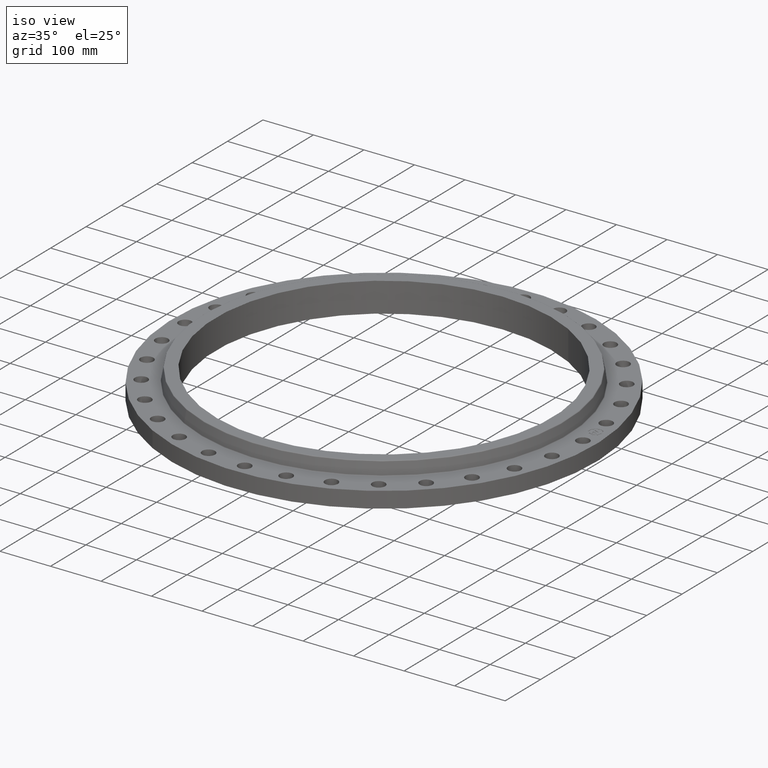
[diagram: clean part render]
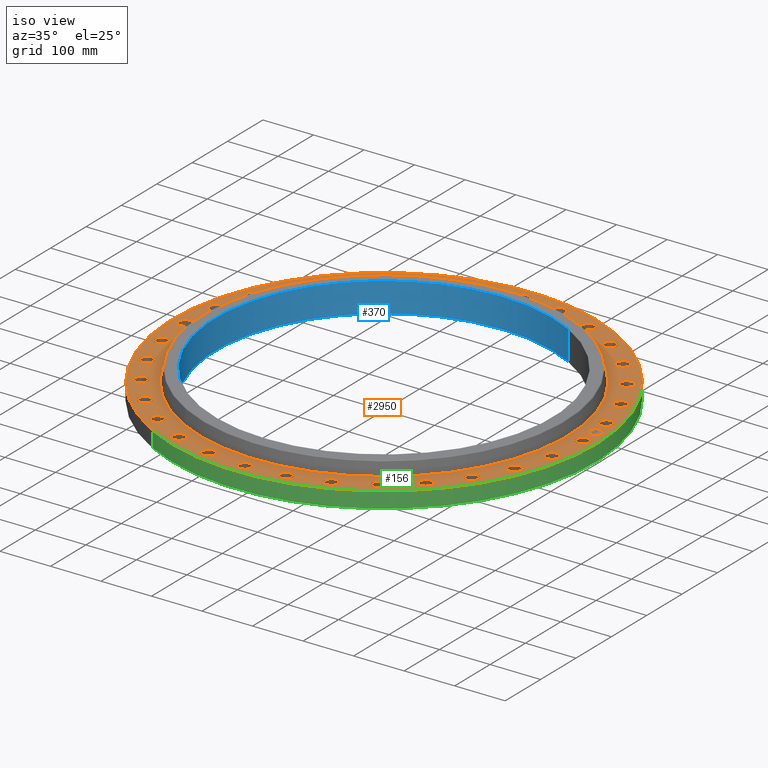
[diagram: same view with three faces highlighted in distinct colors, each labeled with its STEP entity id]
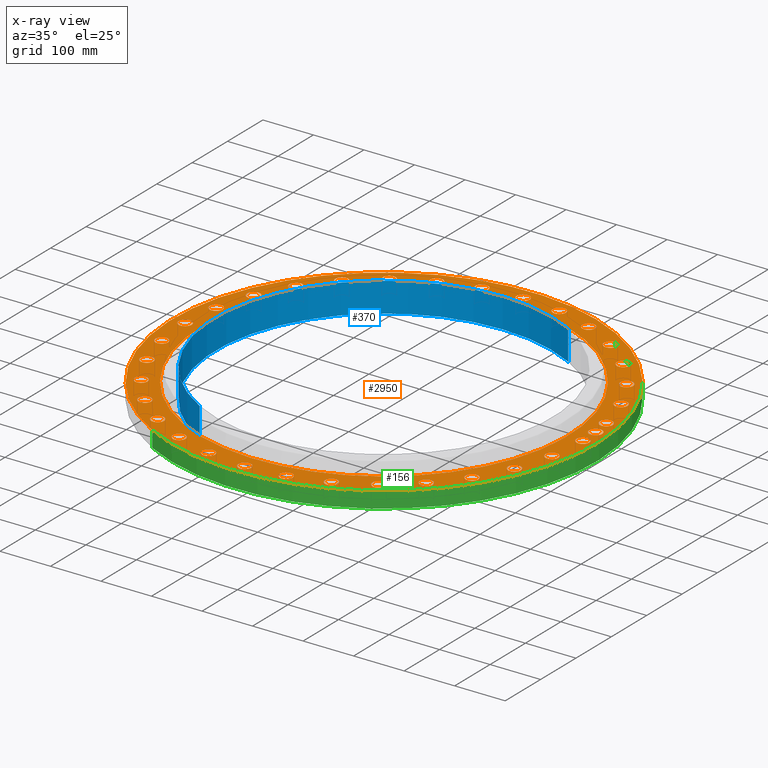
[diagram: x-ray of the same camera — body ghosted, the three highlighted faces saturated]
A machine part, iso view with three faces highlighted in distinct colors.
The next image is the same camera in x-ray (body ghosted, the three faces saturated) — at least one of them is partly hidden behind the body in this view.
Their STEP definitions:

[orange] entity #2950 — the highlighted planar face has unit normal (0, 0, -1).
#65=AXIS2_PLACEMENT_3D('Circle Axis2P3D',#63,#64,$) ;
#89=AXIS2_PLACEMENT_3D('Circle Axis2P3D',#87,#88,$) ;
#123=AXIS2_PLACEMENT_3D('Circle Axis2P3D',#121,#122,$) ;
#147=AXIS2_PLACEMENT_3D('Circle Axis2P3D',#145,#146,$) ;
#164=AXIS2_PLACEMENT_3D('Circle Axis2P3D',#162,#163,$) ;
#199=AXIS2_PLACEMENT_3D('Circle Axis2P3D',#197,#198,$) ;
#1448=AXIS2_PLACEMENT_3D('Circle Axis2P3D',#1446,#1447,$) ;
#1460=AXIS2_PLACEMENT_3D('Circle Axis2P3D',#1458,#1459,$) ;
#1492=AXIS2_PLACEMENT_3D('Circle Axis2P3D',#1490,#1491,$) ;
#1504=AXIS2_PLACEMENT_3D('Circle Axis2P3D',#1502,#1503,$) ;
#1536=AXIS2_PLACEMENT_3D('Circle Axis2P3D',#1534,#1535,$) ;
#1548=AXIS2_PLACEMENT_3D('Circle Axis2P3D',#1546,#1547,$) ;
#1580=AXIS2_PLACEMENT_3D('Circle Axis2P3D',#1578,#1579,$) ;
#1592=AXIS2_PLACEMENT_3D('Circle Axis2P3D',#1590,#1591,$) ;
#1624=AXIS2_PLACEMENT_3D('Circle Axis2P3D',#1622,#1623,$) ;
#1636=AXIS2_PLACEMENT_3D('Circle Axis2P3D',#1634,#1635,$) ;
#1668=AXIS2_PLACEMENT_3D('Circle Axis2P3D',#1666,#1667,$) ;
#1680=AXIS2_PLACEMENT_3D('Circle Axis2P3D',#1678,#1679,$) ;
#1712=AXIS2_PLACEMENT_3D('Circle Axis2P3D',#1710,#1711,$) ;
#1724=AXIS2_PLACEMENT_3D('Circle Axis2P3D',#1722,#1723,$) ;
#1756=AXIS2_PLACEMENT_3D('Circle Axis2P3D',#1754,#1755,$) ;
#1768=AXIS2_PLACEMENT_3D('Circle Axis2P3D',#1766,#1767,$) ;
#1800=AXIS2_PLACEMENT_3D('Circle Axis2P3D',#1798,#1799,$) ;
#1812=AXIS2_PLACEMENT_3D('Circle Axis2P3D',#1810,#1811,$) ;
#1844=AXIS2_PLACEMENT_3D('Circle Axis2P3D',#1842,#1843,$) ;
#1856=AXIS2_PLACEMENT_3D('Circle Axis2P3D',#1854,#1855,$) ;
#1888=AXIS2_PLACEMENT_3D('Circle Axis2P3D',#1886,#1887,$) ;
#1900=AXIS2_PLACEMENT_3D('Circle Axis2P3D',#1898,#1899,$) ;
#1932=AXIS2_PLACEMENT_3D('Circle Axis2P3D',#1930,#1931,$) ;
#1944=AXIS2_PLACEMENT_3D('Circle Axis2P3D',#1942,#1943,$) ;
#1976=AXIS2_PLACEMENT_3D('Circle Axis2P3D',#1974,#1975,$) ;
#1988=AXIS2_PLACEMENT_3D('Circle Axis2P3D',#1986,#1987,$) ;
#2020=AXIS2_PLACEMENT_3D('Circle Axis2P3D',#2018,#2019,$) ;
#2032=AXIS2_PLACEMENT_3D('Circle Axis2P3D',#2030,#2031,$) ;
#2064=AXIS2_PLACEMENT_3D('Circle Axis2P3D',#2062,#2063,$) ;
#2076=AXIS2_PLACEMENT_3D('Circle Axis2P3D',#2074,#2075,$) ;
#2108=AXIS2_PLACEMENT_3D('Circle Axis2P3D',#2106,#2107,$) ;
#2120=AXIS2_PLACEMENT_3D('Circle Axis2P3D',#2118,#2119,$) ;
#2152=AXIS2_PLACEMENT_3D('Circle Axis2P3D',#2150,#2151,$) ;
#2164=AXIS2_PLACEMENT_3D('Circle Axis2P3D',#2162,#2163,$) ;
#2196=AXIS2_PLACEMENT_3D('Circle Axis2P3D',#2194,#2195,$) ;
#2208=AXIS2_PLACEMENT_3D('Circle Axis2P3D',#2206,#2207,$) ;
#2240=AXIS2_PLACEMENT_3D('Circle Axis2P3D',#2238,#2239,$) ;
#2252=AXIS2_PLACEMENT_3D('Circle Axis2P3D',#2250,#2251,$) ;
#2284=AXIS2_PLACEMENT_3D('Circle Axis2P3D',#2282,#2283,$) ;
#2296=AXIS2_PLACEMENT_3D('Circle Axis2P3D',#2294,#2295,$) ;
#2328=AXIS2_PLACEMENT_3D('Circle Axis2P3D',#2326,#2327,$) ;
#2340=AXIS2_PLACEMENT_3D('Circle Axis2P3D',#2338,#2339,$) ;
#2372=AXIS2_PLACEMENT_3D('Circle Axis2P3D',#2370,#2371,$) ;
#2384=AXIS2_PLACEMENT_3D('Circle Axis2P3D',#2382,#2383,$) ;
#2416=AXIS2_PLACEMENT_3D('Circle Axis2P3D',#2414,#2415,$) ;
#2428=AXIS2_PLACEMENT_3D('Circle Axis2P3D',#2426,#2427,$) ;
#2460=AXIS2_PLACEMENT_3D('Circle Axis2P3D',#2458,#2459,$) ;
#2472=AXIS2_PLACEMENT_3D('Circle Axis2P3D',#2470,#2471,$) ;
#2504=AXIS2_PLACEMENT_3D('Circle Axis2P3D',#2502,#2503,$) ;
#2516=AXIS2_PLACEMENT_3D('Circle Axis2P3D',#2514,#2515,$) ;
#2548=AXIS2_PLACEMENT_3D('Circle Axis2P3D',#2546,#2547,$) ;
#2560=AXIS2_PLACEMENT_3D('Circle Axis2P3D',#2558,#2559,$) ;
#2592=AXIS2_PLACEMENT_3D('Circle Axis2P3D',#2590,#2591,$) ;
#2604=AXIS2_PLACEMENT_3D('Circle Axis2P3D',#2602,#2603,$) ;
#2636=AXIS2_PLACEMENT_3D('Circle Axis2P3D',#2634,#2635,$) ;
#2648=AXIS2_PLACEMENT_3D('Circle Axis2P3D',#2646,#2647,$) ;
#2680=AXIS2_PLACEMENT_3D('Circle Axis2P3D',#2678,#2679,$) ;
#2692=AXIS2_PLACEMENT_3D('Circle Axis2P3D',#2690,#2691,$) ;
#2724=AXIS2_PLACEMENT_3D('Circle Axis2P3D',#2722,#2723,$) ;
#2736=AXIS2_PLACEMENT_3D('Circle Axis2P3D',#2734,#2735,$) ;
#2768=AXIS2_PLACEMENT_3D('Circle Axis2P3D',#2766,#2767,$) ;
#2780=AXIS2_PLACEMENT_3D('Circle Axis2P3D',#2778,#2779,$) ;
#2794=AXIS2_PLACEMENT_3D('Plane Axis2P3D',#2791,#2792,#2793) ;
#2934=AXIS2_PLACEMENT_3D('Circle Axis2P3D',#2932,#2933,$) ;
#2943=AXIS2_PLACEMENT_3D('Circle Axis2P3D',#2941,#2942,$) ;
#46=CARTESIAN_POINT('Vertex',(15.0612087191,0.239712769303,1.25000000001)) ;
#60=CARTESIAN_POINT('Vertex',(15.938791281,-0.239712769303,1.25000000001)) ;
#63=CARTESIAN_POINT('Axis2P3D Location',(15.5000000001,0.,1.25000000001)) ;
#87=CARTESIAN_POINT('Axis2P3D Location',(15.5000000001,0.,1.25000000001)) ;
#118=CARTESIAN_POINT('Vertex',(-7.910521387,-14.4801122712,1.25000000001)) ;
#121=CARTESIAN_POINT('Axis2P3D Location',(0.,0.,1.25000000001)) ;
#125=CARTESIAN_POINT('Vertex',(7.910521387,14.4801122712,1.25000000001)) ;
#145=CARTESIAN_POINT('Axis2P3D Location',(0.,0.,1.25000000001)) ;
#162=CARTESIAN_POINT('Axis2P3D Location',(0.,0.,1.25000000001)) ;
#166=CARTESIAN_POINT('Vertex',(6.85595107269,12.5497342592,1.25000000001)) ;
#168=CARTESIAN_POINT('Vertex',(-6.85595107269,-12.5497342592,1.25000000001)) ;
#197=CARTESIAN_POINT('Axis2P3D Location',(0.,0.,1.25000000001)) ;
#1436=CARTESIAN_POINT('Vertex',(-15.0612087191,-0.239712769303,1.25000000001)) ;
#1443=CARTESIAN_POINT('Vertex',(-15.938791281,0.239712769303,1.25000000001)) ;
#1446=CARTESIAN_POINT('Axis2P3D Location',(-15.5000000001,-1.89820253869E-015,1.25000000001)) ;
#1458=CARTESIAN_POINT('Axis2P3D Location',(-15.5000000001,-1.89820253869E-015,1.25000000001)) ;
#1480=CARTESIAN_POINT('Vertex',(14.7250461754,3.17340281462,1.25000000001)) ;
#1487=CARTESIAN_POINT('Vertex',(15.6792975172,2.8743971679,1.25000000001)) ;
#1490=CARTESIAN_POINT('Axis2P3D Location',(15.2021718463,3.02389999126,1.25000000001)) ;
#1502=CARTESIAN_POINT('Axis2P3D Location',(15.2021718463,3.02389999126,1.25000000001)) ;
#1524=CARTESIAN_POINT('Vertex',(-14.7250461754,-3.17340281462,1.25000000001)) ;
#1531=CARTESIAN_POINT('Vertex',(-15.6792975172,-2.8743971679,1.25000000001)) ;
#1534=CARTESIAN_POINT('Axis2P3D Location',(-15.2021718463,-3.02389999126,1.25000000001)) ;
#1546=CARTESIAN_POINT('Axis2P3D Location',(-15.2021718463,-3.02389999126,1.25000000001)) ;
#1568=CARTESIAN_POINT('Vertex',(14.8185774581,-2.70318930331,1.25000000001)) ;
#1575=CARTESIAN_POINT('Vertex',(15.5857662345,-3.34461067922,1.25000000001)) ;
#1578=CARTESIAN_POINT('Axis2P3D Location',(15.2021718463,-3.02389999126,1.25000000001)) ;
#1590=CARTESIAN_POINT('Axis2P3D Location',(15.2021718463,-3.02389999126,1.25000000001)) ;
#1612=CARTESIAN_POINT('Vertex',(-0.239712769303,15.0612087191,1.25000000001)) ;
#1619=CARTESIAN_POINT('Vertex',(0.239712769303,15.938791281,1.25000000001)) ;
#1622=CARTESIAN_POINT('Axis2P3D Location',(-6.09373931619E-016,15.5000000001,1.25000000001)) ;
#1634=CARTESIAN_POINT('Axis2P3D Location',(-6.09373931619E-016,15.5000000001,1.25000000001)) ;
#1656=CARTESIAN_POINT('Vertex',(12.3897600954,8.56687312099,1.25000000001)) ;
#1663=CARTESIAN_POINT('Vertex',(13.3857978861,8.65580410268,1.25000000001)) ;
#1666=CARTESIAN_POINT('Axis2P3D Location',(12.8877789907,8.61133861184,1.25000000001)) ;
#1678=CARTESIAN_POINT('Axis2P3D Location',(12.8877789907,8.61133861184,1.25000000001)) ;
#1700=CARTESIAN_POINT('Vertex',(-10.8193853429,10.4803802934,1.25000000001)) ;
#1707=CARTESIAN_POINT('Vertex',(-11.100924874,11.4399299234,1.25000000001)) ;
#1710=CARTESIAN_POINT('Axis2P3D Location',(-10.9601551084,10.9601551084,1.25000000001)) ;
#1722=CARTESIAN_POINT('Axis2P3D Location',(-10.9601551084,10.9601551084,1.25000000001)) ;
#1744=CARTESIAN_POINT('Vertex',(12.6561146536,-8.16824535428,1.25000000001)) ;
#1751=CARTESIAN_POINT('Vertex',(13.1194433279,-9.0544318694,1.25000000001)) ;
#1754=CARTESIAN_POINT('Axis2P3D Location',(12.8877789907,-8.61133861184,1.25000000001)) ;
#1766=CARTESIAN_POINT('Axis2P3D Location',(12.8877789907,-8.61133861184,1.25000000001)) ;
#1788=CARTESIAN_POINT('Vertex',(10.4803802934,10.8193853429,1.25000000001)) ;
#1795=CARTESIAN_POINT('Vertex',(11.4399299234,11.100924874,1.25000000001)) ;
#1798=CARTESIAN_POINT('Axis2P3D Location',(10.9601551084,10.9601551084,1.25000000001)) ;
#1810=CARTESIAN_POINT('Axis2P3D Location',(10.9601551084,10.9601551084,1.25000000001)) ;
#1832=CARTESIAN_POINT('Vertex',(10.8193853429,-10.4803802934,1.25000000001)) ;
#1839=CARTESIAN_POINT('Vertex',(11.100924874,-11.4399299234,1.25000000001)) ;
#1842=CARTESIAN_POINT('Axis2P3D Location',(10.9601551084,-10.9601551084,1.25000000001)) ;
#1854=CARTESIAN_POINT('Axis2P3D Location',(10.9601551084,-10.9601551084,1.25000000001)) ;
#1876=CARTESIAN_POINT('Vertex',(-14.0064765758,5.54220932696,1.25000000001)) ;
#1883=CARTESIAN_POINT('Vertex',(-14.6337889322,6.32097707641,1.25000000001)) ;
#1886=CARTESIAN_POINT('Axis2P3D Location',(-14.320132754,5.93159320168,1.25000000001)) ;
#1898=CARTESIAN_POINT('Axis2P3D Location',(-14.320132754,5.93159320168,1.25000000001)) ;
#1920=CARTESIAN_POINT('Vertex',(8.56687312099,-12.3897600954,1.25000000001)) ;
#1927=CARTESIAN_POINT('Vertex',(8.65580410268,-13.3857978861,1.25000000001)) ;
#1930=CARTESIAN_POINT('Axis2P3D Location',(8.61133861184,-12.8877789907,1.25000000001)) ;
#1942=CARTESIAN_POINT('Axis2P3D Location',(8.61133861184,-12.8877789907,1.25000000001)) ;
#1964=CARTESIAN_POINT('Vertex',(-5.98514076944,13.8230083651,1.25000000001)) ;
#1971=CARTESIAN_POINT('Vertex',(-5.87804563393,14.8172571428,1.25000000001)) ;
#1974=CARTESIAN_POINT('Axis2P3D Location',(-5.93159320168,14.320132754,1.25000000001)) ;
#1986=CARTESIAN_POINT('Axis2P3D Location',(-5.93159320168,14.320132754,1.25000000001)) ;
#2008=CARTESIAN_POINT('Vertex',(5.98514076944,-13.8230083651,1.25000000001)) ;
#2015=CARTESIAN_POINT('Vertex',(5.87804563393,-14.8172571428,1.25000000001)) ;
#2018=CARTESIAN_POINT('Axis2P3D Location',(5.93159320168,-14.320132754,1.25000000001)) ;
#2030=CARTESIAN_POINT('Axis2P3D Location',(5.93159320168,-14.320132754,1.25000000001)) ;
#2052=CARTESIAN_POINT('Vertex',(5.54220932696,14.0064765758,1.25000000001)) ;
#2059=CARTESIAN_POINT('Vertex',(6.32097707641,14.6337889322,1.25000000001)) ;
#2062=CARTESIAN_POINT('Axis2P3D Location',(5.93159320168,14.320132754,1.25000000001)) ;
#2074=CARTESIAN_POINT('Axis2P3D Location',(5.93159320168,14.320132754,1.25000000001)) ;
#2096=CARTESIAN_POINT('Vertex',(3.17340281462,-14.7250461754,1.25000000001)) ;
#2103=CARTESIAN_POINT('Vertex',(2.8743971679,-15.6792975172,1.25000000001)) ;
#2106=CARTESIAN_POINT('Axis2P3D Location',(3.02389999126,-15.2021718463,1.25000000001)) ;
#2118=CARTESIAN_POINT('Axis2P3D Location',(3.02389999126,-15.2021718463,1.25000000001)) ;
#2140=CARTESIAN_POINT('Vertex',(13.8230083651,5.98514076944,1.25000000001)) ;
#2147=CARTESIAN_POINT('Vertex',(14.8172571428,5.87804563393,1.25000000001)) ;
#2150=CARTESIAN_POINT('Axis2P3D Location',(14.320132754,5.93159320168,1.25000000001)) ;
#2162=CARTESIAN_POINT('Axis2P3D Location',(14.320132754,5.93159320168,1.25000000001)) ;
#2184=CARTESIAN_POINT('Vertex',(0.239712769303,-15.0612087191,1.25000000001)) ;
#2191=CARTESIAN_POINT('Vertex',(-0.239712769303,-15.938791281,1.25000000001)) ;
#2194=CARTESIAN_POINT('Axis2P3D Location',(9.49101269343E-016,-15.5000000001,1.25000000001)) ;
#2206=CARTESIAN_POINT('Axis2P3D Location',(9.49101269343E-016,-15.5000000001,1.25000000001)) ;
#2228=CARTESIAN_POINT('Vertex',(-14.8185774581,2.70318930331,1.25000000001)) ;
#2235=CARTESIAN_POINT('Vertex',(-15.5857662345,3.34461067922,1.25000000001)) ;
#2238=CARTESIAN_POINT('Axis2P3D Location',(-15.2021718463,3.02389999126,1.25000000001)) ;
#2250=CARTESIAN_POINT('Axis2P3D Location',(-15.2021718463,3.02389999126,1.25000000001)) ;
#2272=CARTESIAN_POINT('Vertex',(-2.70318930331,-14.8185774581,1.25000000001)) ;
#2279=CARTESIAN_POINT('Vertex',(-3.34461067922,-15.5857662345,1.25000000001)) ;
#2282=CARTESIAN_POINT('Axis2P3D Location',(-3.02389999126,-15.2021718463,1.25000000001)) ;
#2294=CARTESIAN_POINT('Axis2P3D Location',(-3.02389999126,-15.2021718463,1.25000000001)) ;
#2316=CARTESIAN_POINT('Vertex',(-12.6561146536,8.16824535428,1.25000000001)) ;
#2323=CARTESIAN_POINT('Vertex',(-13.1194433279,9.0544318694,1.25000000001)) ;
#2326=CARTESIAN_POINT('Axis2P3D Location',(-12.8877789907,8.61133861184,1.25000000001)) ;
#2338=CARTESIAN_POINT('Axis2P3D Location',(-12.8877789907,8.61133861184,1.25000000001)) ;
#2360=CARTESIAN_POINT('Vertex',(-5.54220932696,-14.0064765758,1.25000000001)) ;
#2367=CARTESIAN_POINT('Vertex',(-6.32097707641,-14.6337889322,1.25000000001)) ;
#2370=CARTESIAN_POINT('Axis2P3D Location',(-5.93159320168,-14.320132754,1.25000000001)) ;
#2382=CARTESIAN_POINT('Axis2P3D Location',(-5.93159320168,-14.320132754,1.25000000001)) ;
#2404=CARTESIAN_POINT('Vertex',(-8.56687312099,12.3897600954,1.25000000001)) ;
#2411=CARTESIAN_POINT('Vertex',(-8.65580410268,13.3857978861,1.25000000001)) ;
#2414=CARTESIAN_POINT('Axis2P3D Location',(-8.61133861184,12.8877789907,1.25000000001)) ;
#2426=CARTESIAN_POINT('Axis2P3D Location',(-8.61133861184,12.8877789907,1.25000000001)) ;
#2448=CARTESIAN_POINT('Vertex',(-8.16824535428,-12.6561146536,1.25000000001)) ;
#2455=CARTESIAN_POINT('Vertex',(-9.0544318694,-13.1194433279,1.25000000001)) ;
#2458=CARTESIAN_POINT('Axis2P3D Location',(-8.61133861184,-12.8877789907,1.25000000001)) ;
#2470=CARTESIAN_POINT('Axis2P3D Location',(-8.61133861184,-12.8877789907,1.25000000001)) ;
#2492=CARTESIAN_POINT('Vertex',(-3.17340281462,14.7250461754,1.25000000001)) ;
#2499=CARTESIAN_POINT('Vertex',(-2.8743971679,15.6792975172,1.25000000001)) ;
#2502=CARTESIAN_POINT('Axis2P3D Location',(-3.02389999126,15.2021718463,1.25000000001)) ;
#2514=CARTESIAN_POINT('Axis2P3D Location',(-3.02389999126,15.2021718463,1.25000000001)) ;
#2536=CARTESIAN_POINT('Vertex',(-10.4803802934,-10.8193853429,1.25000000001)) ;
#2543=CARTESIAN_POINT('Vertex',(-11.4399299234,-11.100924874,1.25000000001)) ;
#2546=CARTESIAN_POINT('Axis2P3D Location',(-10.9601551084,-10.9601551084,1.25000000001)) ;
#2558=CARTESIAN_POINT('Axis2P3D Location',(-10.9601551084,-10.9601551084,1.25000000001)) ;
#2580=CARTESIAN_POINT('Vertex',(2.70318930331,14.8185774581,1.25000000001)) ;
#2587=CARTESIAN_POINT('Vertex',(3.34461067922,15.5857662345,1.25000000001)) ;
#2590=CARTESIAN_POINT('Axis2P3D Location',(3.02389999126,15.2021718463,1.25000000001)) ;
#2602=CARTESIAN_POINT('Axis2P3D Location',(3.02389999126,15.2021718463,1.25000000001)) ;
#2624=CARTESIAN_POINT('Vertex',(-12.3897600954,-8.56687312099,1.25000000001)) ;
#2631=CARTESIAN_POINT('Vertex',(-13.3857978861,-8.65580410268,1.25000000001)) ;
#2634=CARTESIAN_POINT('Axis2P3D Location',(-12.8877789907,-8.61133861184,1.25000000001)) ;
#2646=CARTESIAN_POINT('Axis2P3D Location',(-12.8877789907,-8.61133861184,1.25000000001)) ;
#2668=CARTESIAN_POINT('Vertex',(8.16824535428,12.6561146536,1.25000000001)) ;
#2675=CARTESIAN_POINT('Vertex',(9.0544318694,13.1194433279,1.25000000001)) ;
#2678=CARTESIAN_POINT('Axis2P3D Location',(8.61133861184,12.8877789907,1.25000000001)) ;
#2690=CARTESIAN_POINT('Axis2P3D Location',(8.61133861184,12.8877789907,1.25000000001)) ;
#2712=CARTESIAN_POINT('Vertex',(-13.8230083651,-5.98514076944,1.25000000001)) ;
#2719=CARTESIAN_POINT('Vertex',(-14.8172571428,-5.87804563393,1.25000000001)) ;
#2722=CARTESIAN_POINT('Axis2P3D Location',(-14.320132754,-5.93159320168,1.25000000001)) ;
#2734=CARTESIAN_POINT('Axis2P3D Location',(-14.320132754,-5.93159320168,1.25000000001)) ;
#2756=CARTESIAN_POINT('Vertex',(14.0064765758,-5.54220932696,1.25000000001)) ;
#2763=CARTESIAN_POINT('Vertex',(14.6337889322,-6.32097707641,1.25000000001)) ;
#2766=CARTESIAN_POINT('Axis2P3D Location',(14.320132754,-5.93159320168,1.25000000001)) ;
#2778=CARTESIAN_POINT('Axis2P3D Location',(14.320132754,-5.93159320168,1.25000000001)) ;
#2791=CARTESIAN_POINT('Axis2P3D Location',(0.,16.5000000001,1.25000000001)) ;
#2932=CARTESIAN_POINT('Axis2P3D Location',(15.4253632635,1.51926567511,1.25000000001)) ;
#2936=CARTESIAN_POINT('Vertex',(15.3763546938,2.01685803348,1.25000000001)) ;
#2938=CARTESIAN_POINT('Vertex',(15.4743718332,1.02167331675,1.25000000001)) ;
#2941=CARTESIAN_POINT('Axis2P3D Location',(15.4253632635,1.51926567511,1.25000000001)) ;
#64=DIRECTION('Axis2P3D Direction',(0.,-0.,-0.0393700787402)) ;
#88=DIRECTION('Axis2P3D Direction',(0.,-0.,-0.0393700787402)) ;
#122=DIRECTION('Axis2P3D Direction',(0.,0.,-0.0393700787402)) ;
#146=DIRECTION('Axis2P3D Direction',(0.,0.,-0.0393700787402)) ;
#163=DIRECTION('Axis2P3D Direction',(0.,0.,-0.0393700787402)) ;
#198=DIRECTION('Axis2P3D Direction',(0.,0.,-0.0393700787402)) ;
#1447=DIRECTION('Axis2P3D Direction',(-0.,0.,-0.0393700787402)) ;
#1459=DIRECTION('Axis2P3D Direction',(-0.,0.,-0.0393700787402)) ;
#1491=DIRECTION('Axis2P3D Direction',(0.,0.,-0.0393700787402)) ;
#1503=DIRECTION('Axis2P3D Direction',(0.,0.,-0.0393700787402)) ;
#1535=DIRECTION('Axis2P3D Direction',(-0.,0.,-0.0393700787402)) ;
#1547=DIRECTION('Axis2P3D Direction',(-0.,0.,-0.0393700787402)) ;
#1579=DIRECTION('Axis2P3D Direction',(0.,-0.,-0.0393700787402)) ;
#1591=DIRECTION('Axis2P3D Direction',(0.,-0.,-0.0393700787402)) ;
#1623=DIRECTION('Axis2P3D Direction',(0.,0.,-0.0393700787402)) ;
#1635=DIRECTION('Axis2P3D Direction',(0.,0.,-0.0393700787402)) ;
#1667=DIRECTION('Axis2P3D Direction',(0.,0.,-0.0393700787402)) ;
#1679=DIRECTION('Axis2P3D Direction',(0.,0.,-0.0393700787402)) ;
#1711=DIRECTION('Axis2P3D Direction',(0.,0.,-0.0393700787402)) ;
#1723=DIRECTION('Axis2P3D Direction',(0.,0.,-0.0393700787402)) ;
#1755=DIRECTION('Axis2P3D Direction',(0.,-0.,-0.0393700787402)) ;
#1767=DIRECTION('Axis2P3D Direction',(0.,-0.,-0.0393700787402)) ;
#1799=DIRECTION('Axis2P3D Direction',(0.,0.,-0.0393700787402)) ;
#1811=DIRECTION('Axis2P3D Direction',(0.,0.,-0.0393700787402)) ;
#1843=DIRECTION('Axis2P3D Direction',(0.,-0.,-0.0393700787402)) ;
#1855=DIRECTION('Axis2P3D Direction',(0.,-0.,-0.0393700787402)) ;
#1887=DIRECTION('Axis2P3D Direction',(0.,0.,-0.0393700787402)) ;
#1899=DIRECTION('Axis2P3D Direction',(0.,0.,-0.0393700787402)) ;
#1931=DIRECTION('Axis2P3D Direction',(0.,-0.,-0.0393700787402)) ;
#1943=DIRECTION('Axis2P3D Direction',(0.,-0.,-0.0393700787402)) ;
#1975=DIRECTION('Axis2P3D Direction',(0.,0.,-0.0393700787402)) ;
#1987=DIRECTION('Axis2P3D Direction',(0.,0.,-0.0393700787402)) ;
#2019=DIRECTION('Axis2P3D Direction',(0.,-0.,-0.0393700787402)) ;
#2031=DIRECTION('Axis2P3D Direction',(0.,-0.,-0.0393700787402)) ;
#2063=DIRECTION('Axis2P3D Direction',(0.,0.,-0.0393700787402)) ;
#2075=DIRECTION('Axis2P3D Direction',(0.,0.,-0.0393700787402)) ;
#2107=DIRECTION('Axis2P3D Direction',(0.,-0.,-0.0393700787402)) ;
#2119=DIRECTION('Axis2P3D Direction',(0.,-0.,-0.0393700787402)) ;
#2151=DIRECTION('Axis2P3D Direction',(0.,0.,-0.0393700787402)) ;
#2163=DIRECTION('Axis2P3D Direction',(0.,0.,-0.0393700787402)) ;
#2195=DIRECTION('Axis2P3D Direction',(0.,-0.,-0.0393700787402)) ;
#2207=DIRECTION('Axis2P3D Direction',(0.,-0.,-0.0393700787402)) ;
#2239=DIRECTION('Axis2P3D Direction',(0.,0.,-0.0393700787402)) ;
#2251=DIRECTION('Axis2P3D Direction',(0.,0.,-0.0393700787402)) ;
#2283=DIRECTION('Axis2P3D Direction',(-0.,0.,-0.0393700787402)) ;
#2295=DIRECTION('Axis2P3D Direction',(-0.,0.,-0.0393700787402)) ;
#2327=DIRECTION('Axis2P3D Direction',(0.,0.,-0.0393700787402)) ;
#2339=DIRECTION('Axis2P3D Direction',(0.,0.,-0.0393700787402)) ;
#2371=DIRECTION('Axis2P3D Direction',(-0.,0.,-0.0393700787402)) ;
#2383=DIRECTION('Axis2P3D Direction',(-0.,0.,-0.0393700787402)) ;
#2415=DIRECTION('Axis2P3D Direction',(0.,0.,-0.0393700787402)) ;
#2427=DIRECTION('Axis2P3D Direction',(0.,0.,-0.0393700787402)) ;
#2459=DIRECTION('Axis2P3D Direction',(-0.,0.,-0.0393700787402)) ;
#2471=DIRECTION('Axis2P3D Direction',(-0.,0.,-0.0393700787402)) ;
#2503=DIRECTION('Axis2P3D Direction',(0.,0.,-0.0393700787402)) ;
#2515=DIRECTION('Axis2P3D Direction',(0.,0.,-0.0393700787402)) ;
#2547=DIRECTION('Axis2P3D Direction',(-0.,0.,-0.0393700787402)) ;
#2559=DIRECTION('Axis2P3D Direction',(-0.,0.,-0.0393700787402)) ;
#2591=DIRECTION('Axis2P3D Direction',(0.,0.,-0.0393700787402)) ;
#2603=DIRECTION('Axis2P3D Direction',(0.,0.,-0.0393700787402)) ;
#2635=DIRECTION('Axis2P3D Direction',(-0.,0.,-0.0393700787402)) ;
#2647=DIRECTION('Axis2P3D Direction',(-0.,0.,-0.0393700787402)) ;
#2679=DIRECTION('Axis2P3D Direction',(0.,0.,-0.0393700787402)) ;
#2691=DIRECTION('Axis2P3D Direction',(0.,0.,-0.0393700787402)) ;
#2723=DIRECTION('Axis2P3D Direction',(-0.,0.,-0.0393700787402)) ;
#2735=DIRECTION('Axis2P3D Direction',(-0.,0.,-0.0393700787402)) ;
#2767=DIRECTION('Axis2P3D Direction',(0.,-0.,-0.0393700787402)) ;
#2779=DIRECTION('Axis2P3D Direction',(0.,-0.,-0.0393700787402)) ;
#2792=DIRECTION('Axis2P3D Direction',(0.,0.,-0.0393700787402)) ;
#2793=DIRECTION('Axis2P3D XDirection',(0.0393700787402,0.,0.)) ;
#2933=DIRECTION('Axis2P3D Direction',(0.,0.,-0.0393700787402)) ;
#2942=DIRECTION('Axis2P3D Direction',(0.,0.,-0.0393700787402)) ;
#2797=ORIENTED_EDGE('',*,*,#149,.F.) ;
#2798=ORIENTED_EDGE('',*,*,#127,.F.) ;
#2801=ORIENTED_EDGE('',*,*,#67,.T.) ;
#2802=ORIENTED_EDGE('',*,*,#91,.T.) ;
#2805=ORIENTED_EDGE('',*,*,#201,.T.) ;
#2806=ORIENTED_EDGE('',*,*,#170,.T.) ;
#2809=ORIENTED_EDGE('',*,*,#1594,.T.) ;
#2810=ORIENTED_EDGE('',*,*,#1582,.T.) ;
#2813=ORIENTED_EDGE('',*,*,#2782,.T.) ;
#2814=ORIENTED_EDGE('',*,*,#2770,.T.) ;
#2817=ORIENTED_EDGE('',*,*,#1770,.T.) ;
#2818=ORIENTED_EDGE('',*,*,#1758,.T.) ;
#2821=ORIENTED_EDGE('',*,*,#1858,.T.) ;
#2822=ORIENTED_EDGE('',*,*,#1846,.T.) ;
#2825=ORIENTED_EDGE('',*,*,#1946,.T.) ;
#2826=ORIENTED_EDGE('',*,*,#1934,.T.) ;
#2829=ORIENTED_EDGE('',*,*,#2034,.T.) ;
#2830=ORIENTED_EDGE('',*,*,#2022,.T.) ;
#2833=ORIENTED_EDGE('',*,*,#2122,.T.) ;
#2834=ORIENTED_EDGE('',*,*,#2110,.T.) ;
#2837=ORIENTED_EDGE('',*,*,#2210,.T.) ;
#2838=ORIENTED_EDGE('',*,*,#2198,.T.) ;
#2841=ORIENTED_EDGE('',*,*,#2298,.T.) ;
#2842=ORIENTED_EDGE('',*,*,#2286,.T.) ;
#2845=ORIENTED_EDGE('',*,*,#2386,.T.) ;
#2846=ORIENTED_EDGE('',*,*,#2374,.T.) ;
#2849=ORIENTED_EDGE('',*,*,#2474,.T.) ;
#2850=ORIENTED_EDGE('',*,*,#2462,.T.) ;
#2853=ORIENTED_EDGE('',*,*,#2562,.T.) ;
#2854=ORIENTED_EDGE('',*,*,#2550,.T.) ;
#2857=ORIENTED_EDGE('',*,*,#2650,.T.) ;
#2858=ORIENTED_EDGE('',*,*,#2638,.T.) ;
#2861=ORIENTED_EDGE('',*,*,#2738,.T.) ;
#2862=ORIENTED_EDGE('',*,*,#2726,.T.) ;
#2865=ORIENTED_EDGE('',*,*,#1550,.T.) ;
#2866=ORIENTED_EDGE('',*,*,#1538,.T.) ;
#2869=ORIENTED_EDGE('',*,*,#1462,.T.) ;
#2870=ORIENTED_EDGE('',*,*,#1450,.T.) ;
#2873=ORIENTED_EDGE('',*,*,#2254,.T.) ;
#2874=ORIENTED_EDGE('',*,*,#2242,.T.) ;
#2877=ORIENTED_EDGE('',*,*,#1902,.T.) ;
#2878=ORIENTED_EDGE('',*,*,#1890,.T.) ;
#2881=ORIENTED_EDGE('',*,*,#2342,.T.) ;
#2882=ORIENTED_EDGE('',*,*,#2330,.T.) ;
#2885=ORIENTED_EDGE('',*,*,#1726,.T.) ;
#2886=ORIENTED_EDGE('',*,*,#1714,.T.) ;
#2889=ORIENTED_EDGE('',*,*,#2430,.T.) ;
#2890=ORIENTED_EDGE('',*,*,#2418,.T.) ;
#2893=ORIENTED_EDGE('',*,*,#1990,.T.) ;
#2894=ORIENTED_EDGE('',*,*,#1978,.T.) ;
#2897=ORIENTED_EDGE('',*,*,#2518,.T.) ;
#2898=ORIENTED_EDGE('',*,*,#2506,.T.) ;
#2901=ORIENTED_EDGE('',*,*,#1638,.T.) ;
#2902=ORIENTED_EDGE('',*,*,#1626,.T.) ;
#2905=ORIENTED_EDGE('',*,*,#2606,.T.) ;
#2906=ORIENTED_EDGE('',*,*,#2594,.T.) ;
#2909=ORIENTED_EDGE('',*,*,#2078,.T.) ;
#2910=ORIENTED_EDGE('',*,*,#2066,.T.) ;
#2913=ORIENTED_EDGE('',*,*,#2694,.T.) ;
#2914=ORIENTED_EDGE('',*,*,#2682,.T.) ;
#2917=ORIENTED_EDGE('',*,*,#1814,.T.) ;
#2918=ORIENTED_EDGE('',*,*,#1802,.T.) ;
#2921=ORIENTED_EDGE('',*,*,#1682,.T.) ;
#2922=ORIENTED_EDGE('',*,*,#1670,.T.) ;
#2925=ORIENTED_EDGE('',*,*,#2166,.T.) ;
#2926=ORIENTED_EDGE('',*,*,#2154,.T.) ;
#2929=ORIENTED_EDGE('',*,*,#1506,.T.) ;
#2930=ORIENTED_EDGE('',*,*,#1494,.T.) ;
#2947=ORIENTED_EDGE('',*,*,#2940,.T.) ;
#2948=ORIENTED_EDGE('',*,*,#2945,.T.) ;
#2803=FACE_BOUND('',#2800,.T.) ;
#2807=FACE_BOUND('',#2804,.T.) ;
#2811=FACE_BOUND('',#2808,.T.) ;
#2815=FACE_BOUND('',#2812,.T.) ;
#2819=FACE_BOUND('',#2816,.T.) ;
#2823=FACE_BOUND('',#2820,.T.) ;
#2827=FACE_BOUND('',#2824,.T.) ;
#2831=FACE_BOUND('',#2828,.T.) ;
#2835=FACE_BOUND('',#2832,.T.) ;
#2839=FACE_BOUND('',#2836,.T.) ;
#2843=FACE_BOUND('',#2840,.T.) ;
#2847=FACE_BOUND('',#2844,.T.) ;
#2851=FACE_BOUND('',#2848,.T.) ;
#2855=FACE_BOUND('',#2852,.T.) ;
#2859=FACE_BOUND('',#2856,.T.) ;
#2863=FACE_BOUND('',#2860,.T.) ;
#2867=FACE_BOUND('',#2864,.T.) ;
#2871=FACE_BOUND('',#2868,.T.) ;
#2875=FACE_BOUND('',#2872,.T.) ;
#2879=FACE_BOUND('',#2876,.T.) ;
#2883=FACE_BOUND('',#2880,.T.) ;
#2887=FACE_BOUND('',#2884,.T.) ;
#2891=FACE_BOUND('',#2888,.T.) ;
#2895=FACE_BOUND('',#2892,.T.) ;
#2899=FACE_BOUND('',#2896,.T.) ;
#2903=FACE_BOUND('',#2900,.T.) ;
#2907=FACE_BOUND('',#2904,.T.) ;
#2911=FACE_BOUND('',#2908,.T.) ;
#2915=FACE_BOUND('',#2912,.T.) ;
#2919=FACE_BOUND('',#2916,.T.) ;
#2923=FACE_BOUND('',#2920,.T.) ;
#2927=FACE_BOUND('',#2924,.T.) ;
#2931=FACE_BOUND('',#2928,.T.) ;
#2949=FACE_BOUND('',#2946,.T.) ;
#2950=ADVANCED_FACE('PartBody',(#2799,#2803,#2807,#2811,#2815,#2819,#2823,#2827,#2831,#2835,#2839,#2843,#2847,#2851,#2855,#2859,#2863,#2867,#2871,#2875,#2879,#2883,#2887,#2891,#2895,#2899,#2903,#2907,#2911,#2915,#2919,#2923,#2927,#2931,#2949),#2795,.F.) ;
#66=CIRCLE('generated circle',#65,0.500000000002) ;
#90=CIRCLE('generated circle',#89,0.500000000002) ;
#124=CIRCLE('generated circle',#123,16.5000000001) ;
#148=CIRCLE('generated circle',#147,16.5000000001) ;
#165=CIRCLE('generated circle',#164,14.3003459779) ;
#200=CIRCLE('generated circle',#199,14.3003459779) ;
#1449=CIRCLE('generated circle',#1448,0.500000000002) ;
#1461=CIRCLE('generated circle',#1460,0.500000000002) ;
#1493=CIRCLE('generated circle',#1492,0.500000000002) ;
#1505=CIRCLE('generated circle',#1504,0.500000000002) ;
#1537=CIRCLE('generated circle',#1536,0.500000000002) ;
#1549=CIRCLE('generated circle',#1548,0.500000000002) ;
#1581=CIRCLE('generated circle',#1580,0.500000000002) ;
#1593=CIRCLE('generated circle',#1592,0.500000000002) ;
#1625=CIRCLE('generated circle',#1624,0.500000000002) ;
#1637=CIRCLE('generated circle',#1636,0.500000000002) ;
#1669=CIRCLE('generated circle',#1668,0.500000000002) ;
#1681=CIRCLE('generated circle',#1680,0.500000000002) ;
#1713=CIRCLE('generated circle',#1712,0.500000000002) ;
#1725=CIRCLE('generated circle',#1724,0.500000000002) ;
#1757=CIRCLE('generated circle',#1756,0.500000000002) ;
#1769=CIRCLE('generated circle',#1768,0.500000000002) ;
#1801=CIRCLE('generated circle',#1800,0.500000000002) ;
#1813=CIRCLE('generated circle',#1812,0.500000000002) ;
#1845=CIRCLE('generated circle',#1844,0.500000000002) ;
#1857=CIRCLE('generated circle',#1856,0.500000000002) ;
#1889=CIRCLE('generated circle',#1888,0.500000000002) ;
#1901=CIRCLE('generated circle',#1900,0.500000000002) ;
#1933=CIRCLE('generated circle',#1932,0.500000000002) ;
#1945=CIRCLE('generated circle',#1944,0.500000000002) ;
#1977=CIRCLE('generated circle',#1976,0.500000000002) ;
#1989=CIRCLE('generated circle',#1988,0.500000000002) ;
#2021=CIRCLE('generated circle',#2020,0.500000000002) ;
#2033=CIRCLE('generated circle',#2032,0.500000000002) ;
#2065=CIRCLE('generated circle',#2064,0.500000000002) ;
#2077=CIRCLE('generated circle',#2076,0.500000000002) ;
#2109=CIRCLE('generated circle',#2108,0.500000000002) ;
#2121=CIRCLE('generated circle',#2120,0.500000000002) ;
#2153=CIRCLE('generated circle',#2152,0.500000000002) ;
#2165=CIRCLE('generated circle',#2164,0.500000000002) ;
#2197=CIRCLE('generated circle',#2196,0.500000000002) ;
#2209=CIRCLE('generated circle',#2208,0.500000000002) ;
#2241=CIRCLE('generated circle',#2240,0.500000000002) ;
#2253=CIRCLE('generated circle',#2252,0.500000000002) ;
#2285=CIRCLE('generated circle',#2284,0.500000000002) ;
#2297=CIRCLE('generated circle',#2296,0.500000000002) ;
#2329=CIRCLE('generated circle',#2328,0.500000000002) ;
#2341=CIRCLE('generated circle',#2340,0.500000000002) ;
#2373=CIRCLE('generated circle',#2372,0.500000000002) ;
#2385=CIRCLE('generated circle',#2384,0.500000000002) ;
#2417=CIRCLE('generated circle',#2416,0.500000000002) ;
#2429=CIRCLE('generated circle',#2428,0.500000000002) ;
#2461=CIRCLE('generated circle',#2460,0.500000000002) ;
#2473=CIRCLE('generated circle',#2472,0.500000000002) ;
#2505=CIRCLE('generated circle',#2504,0.500000000002) ;
#2517=CIRCLE('generated circle',#2516,0.500000000002) ;
#2549=CIRCLE('generated circle',#2548,0.500000000002) ;
#2561=CIRCLE('generated circle',#2560,0.500000000002) ;
#2593=CIRCLE('generated circle',#2592,0.500000000002) ;
#2605=CIRCLE('generated circle',#2604,0.500000000002) ;
#2637=CIRCLE('generated circle',#2636,0.500000000002) ;
#2649=CIRCLE('generated circle',#2648,0.500000000002) ;
#2681=CIRCLE('generated circle',#2680,0.500000000002) ;
#2693=CIRCLE('generated circle',#2692,0.500000000002) ;
#2725=CIRCLE('generated circle',#2724,0.500000000002) ;
#2737=CIRCLE('generated circle',#2736,0.500000000002) ;
#2769=CIRCLE('generated circle',#2768,0.500000000002) ;
#2781=CIRCLE('generated circle',#2780,0.500000000002) ;
#2935=CIRCLE('generated circle',#2934,0.499999995002) ;
#2944=CIRCLE('generated circle',#2943,0.499999995002) ;
#67=EDGE_CURVE('',#47,#61,#66,.T.) ;
#91=EDGE_CURVE('',#61,#47,#90,.T.) ;
#127=EDGE_CURVE('',#119,#126,#124,.T.) ;
#149=EDGE_CURVE('',#126,#119,#148,.T.) ;
#170=EDGE_CURVE('',#167,#169,#165,.T.) ;
#201=EDGE_CURVE('',#169,#167,#200,.T.) ;
#1450=EDGE_CURVE('',#1437,#1444,#1449,.T.) ;
#1462=EDGE_CURVE('',#1444,#1437,#1461,.T.) ;
#1494=EDGE_CURVE('',#1481,#1488,#1493,.T.) ;
#1506=EDGE_CURVE('',#1488,#1481,#1505,.T.) ;
#1538=EDGE_CURVE('',#1525,#1532,#1537,.T.) ;
#1550=EDGE_CURVE('',#1532,#1525,#1549,.T.) ;
#1582=EDGE_CURVE('',#1569,#1576,#1581,.T.) ;
#1594=EDGE_CURVE('',#1576,#1569,#1593,.T.) ;
#1626=EDGE_CURVE('',#1613,#1620,#1625,.T.) ;
#1638=EDGE_CURVE('',#1620,#1613,#1637,.T.) ;
#1670=EDGE_CURVE('',#1657,#1664,#1669,.T.) ;
#1682=EDGE_CURVE('',#1664,#1657,#1681,.T.) ;
#1714=EDGE_CURVE('',#1701,#1708,#1713,.T.) ;
#1726=EDGE_CURVE('',#1708,#1701,#1725,.T.) ;
#1758=EDGE_CURVE('',#1745,#1752,#1757,.T.) ;
#1770=EDGE_CURVE('',#1752,#1745,#1769,.T.) ;
#1802=EDGE_CURVE('',#1789,#1796,#1801,.T.) ;
#1814=EDGE_CURVE('',#1796,#1789,#1813,.T.) ;
#1846=EDGE_CURVE('',#1833,#1840,#1845,.T.) ;
#1858=EDGE_CURVE('',#1840,#1833,#1857,.T.) ;
#1890=EDGE_CURVE('',#1877,#1884,#1889,.T.) ;
#1902=EDGE_CURVE('',#1884,#1877,#1901,.T.) ;
#1934=EDGE_CURVE('',#1921,#1928,#1933,.T.) ;
#1946=EDGE_CURVE('',#1928,#1921,#1945,.T.) ;
#1978=EDGE_CURVE('',#1965,#1972,#1977,.T.) ;
#1990=EDGE_CURVE('',#1972,#1965,#1989,.T.) ;
#2022=EDGE_CURVE('',#2009,#2016,#2021,.T.) ;
#2034=EDGE_CURVE('',#2016,#2009,#2033,.T.) ;
#2066=EDGE_CURVE('',#2053,#2060,#2065,.T.) ;
#2078=EDGE_CURVE('',#2060,#2053,#2077,.T.) ;
#2110=EDGE_CURVE('',#2097,#2104,#2109,.T.) ;
#2122=EDGE_CURVE('',#2104,#2097,#2121,.T.) ;
#2154=EDGE_CURVE('',#2141,#2148,#2153,.T.) ;
#2166=EDGE_CURVE('',#2148,#2141,#2165,.T.) ;
#2198=EDGE_CURVE('',#2185,#2192,#2197,.T.) ;
#2210=EDGE_CURVE('',#2192,#2185,#2209,.T.) ;
#2242=EDGE_CURVE('',#2229,#2236,#2241,.T.) ;
#2254=EDGE_CURVE('',#2236,#2229,#2253,.T.) ;
#2286=EDGE_CURVE('',#2273,#2280,#2285,.T.) ;
#2298=EDGE_CURVE('',#2280,#2273,#2297,.T.) ;
#2330=EDGE_CURVE('',#2317,#2324,#2329,.T.) ;
#2342=EDGE_CURVE('',#2324,#2317,#2341,.T.) ;
#2374=EDGE_CURVE('',#2361,#2368,#2373,.T.) ;
#2386=EDGE_CURVE('',#2368,#2361,#2385,.T.) ;
#2418=EDGE_CURVE('',#2405,#2412,#2417,.T.) ;
#2430=EDGE_CURVE('',#2412,#2405,#2429,.T.) ;
#2462=EDGE_CURVE('',#2449,#2456,#2461,.T.) ;
#2474=EDGE_CURVE('',#2456,#2449,#2473,.T.) ;
#2506=EDGE_CURVE('',#2493,#2500,#2505,.T.) ;
#2518=EDGE_CURVE('',#2500,#2493,#2517,.T.) ;
#2550=EDGE_CURVE('',#2537,#2544,#2549,.T.) ;
#2562=EDGE_CURVE('',#2544,#2537,#2561,.T.) ;
#2594=EDGE_CURVE('',#2581,#2588,#2593,.T.) ;
#2606=EDGE_CURVE('',#2588,#2581,#2605,.T.) ;
#2638=EDGE_CURVE('',#2625,#2632,#2637,.T.) ;
#2650=EDGE_CURVE('',#2632,#2625,#2649,.T.) ;
#2682=EDGE_CURVE('',#2669,#2676,#2681,.T.) ;
#2694=EDGE_CURVE('',#2676,#2669,#2693,.T.) ;
#2726=EDGE_CURVE('',#2713,#2720,#2725,.T.) ;
#2738=EDGE_CURVE('',#2720,#2713,#2737,.T.) ;
#2770=EDGE_CURVE('',#2757,#2764,#2769,.T.) ;
#2782=EDGE_CURVE('',#2764,#2757,#2781,.T.) ;
#2940=EDGE_CURVE('',#2937,#2939,#2935,.T.) ;
#2945=EDGE_CURVE('',#2939,#2937,#2944,.T.) ;
#2796=EDGE_LOOP('',(#2797,#2798)) ;
#2800=EDGE_LOOP('',(#2801,#2802)) ;
#2804=EDGE_LOOP('',(#2805,#2806)) ;
#2808=EDGE_LOOP('',(#2809,#2810)) ;
#2812=EDGE_LOOP('',(#2813,#2814)) ;
#2816=EDGE_LOOP('',(#2817,#2818)) ;
#2820=EDGE_LOOP('',(#2821,#2822)) ;
#2824=EDGE_LOOP('',(#2825,#2826)) ;
#2828=EDGE_LOOP('',(#2829,#2830)) ;
#2832=EDGE_LOOP('',(#2833,#2834)) ;
#2836=EDGE_LOOP('',(#2837,#2838)) ;
#2840=EDGE_LOOP('',(#2841,#2842)) ;
#2844=EDGE_LOOP('',(#2845,#2846)) ;
#2848=EDGE_LOOP('',(#2849,#2850)) ;
#2852=EDGE_LOOP('',(#2853,#2854)) ;
#2856=EDGE_LOOP('',(#2857,#2858)) ;
#2860=EDGE_LOOP('',(#2861,#2862)) ;
#2864=EDGE_LOOP('',(#2865,#2866)) ;
#2868=EDGE_LOOP('',(#2869,#2870)) ;
#2872=EDGE_LOOP('',(#2873,#2874)) ;
#2876=EDGE_LOOP('',(#2877,#2878)) ;
#2880=EDGE_LOOP('',(#2881,#2882)) ;
#2884=EDGE_LOOP('',(#2885,#2886)) ;
#2888=EDGE_LOOP('',(#2889,#2890)) ;
#2892=EDGE_LOOP('',(#2893,#2894)) ;
#2896=EDGE_LOOP('',(#2897,#2898)) ;
#2900=EDGE_LOOP('',(#2901,#2902)) ;
#2904=EDGE_LOOP('',(#2905,#2906)) ;
#2908=EDGE_LOOP('',(#2909,#2910)) ;
#2912=EDGE_LOOP('',(#2913,#2914)) ;
#2916=EDGE_LOOP('',(#2917,#2918)) ;
#2920=EDGE_LOOP('',(#2921,#2922)) ;
#2924=EDGE_LOOP('',(#2925,#2926)) ;
#2928=EDGE_LOOP('',(#2929,#2930)) ;
#2946=EDGE_LOOP('',(#2947,#2948)) ;
#2799=FACE_OUTER_BOUND('',#2796,.T.) ;
#2795=PLANE('',#2794) ;
#47=VERTEX_POINT('',#46) ;
#61=VERTEX_POINT('',#60) ;
#119=VERTEX_POINT('',#118) ;
#126=VERTEX_POINT('',#125) ;
#167=VERTEX_POINT('',#166) ;
#169=VERTEX_POINT('',#168) ;
#1437=VERTEX_POINT('',#1436) ;
#1444=VERTEX_POINT('',#1443) ;
#1481=VERTEX_POINT('',#1480) ;
#1488=VERTEX_POINT('',#1487) ;
#1525=VERTEX_POINT('',#1524) ;
#1532=VERTEX_POINT('',#1531) ;
#1569=VERTEX_POINT('',#1568) ;
#1576=VERTEX_POINT('',#1575) ;
#1613=VERTEX_POINT('',#1612) ;
#1620=VERTEX_POINT('',#1619) ;
#1657=VERTEX_POINT('',#1656) ;
#1664=VERTEX_POINT('',#1663) ;
#1701=VERTEX_POINT('',#1700) ;
#1708=VERTEX_POINT('',#1707) ;
#1745=VERTEX_POINT('',#1744) ;
#1752=VERTEX_POINT('',#1751) ;
#1789=VERTEX_POINT('',#1788) ;
#1796=VERTEX_POINT('',#1795) ;
#1833=VERTEX_POINT('',#1832) ;
#1840=VERTEX_POINT('',#1839) ;
#1877=VERTEX_POINT('',#1876) ;
#1884=VERTEX_POINT('',#1883) ;
#1921=VERTEX_POINT('',#1920) ;
#1928=VERTEX_POINT('',#1927) ;
#1965=VERTEX_POINT('',#1964) ;
#1972=VERTEX_POINT('',#1971) ;
#2009=VERTEX_POINT('',#2008) ;
#2016=VERTEX_POINT('',#2015) ;
#2053=VERTEX_POINT('',#2052) ;
#2060=VERTEX_POINT('',#2059) ;
#2097=VERTEX_POINT('',#2096) ;
#2104=VERTEX_POINT('',#2103) ;
#2141=VERTEX_POINT('',#2140) ;
#2148=VERTEX_POINT('',#2147) ;
#2185=VERTEX_POINT('',#2184) ;
#2192=VERTEX_POINT('',#2191) ;
#2229=VERTEX_POINT('',#2228) ;
#2236=VERTEX_POINT('',#2235) ;
#2273=VERTEX_POINT('',#2272) ;
#2280=VERTEX_POINT('',#2279) ;
#2317=VERTEX_POINT('',#2316) ;
#2324=VERTEX_POINT('',#2323) ;
#2361=VERTEX_POINT('',#2360) ;
#2368=VERTEX_POINT('',#2367) ;
#2405=VERTEX_POINT('',#2404) ;
#2412=VERTEX_POINT('',#2411) ;
#2449=VERTEX_POINT('',#2448) ;
#2456=VERTEX_POINT('',#2455) ;
#2493=VERTEX_POINT('',#2492) ;
#2500=VERTEX_POINT('',#2499) ;
#2537=VERTEX_POINT('',#2536) ;
#2544=VERTEX_POINT('',#2543) ;
#2581=VERTEX_POINT('',#2580) ;
#2588=VERTEX_POINT('',#2587) ;
#2625=VERTEX_POINT('',#2624) ;
#2632=VERTEX_POINT('',#2631) ;
#2669=VERTEX_POINT('',#2668) ;
#2676=VERTEX_POINT('',#2675) ;
#2713=VERTEX_POINT('',#2712) ;
#2720=VERTEX_POINT('',#2719) ;
#2757=VERTEX_POINT('',#2756) ;
#2764=VERTEX_POINT('',#2763) ;
#2937=VERTEX_POINT('',#2936) ;
#2939=VERTEX_POINT('',#2938) ;

[blue] entity #370 — the highlighted cylindrical surface (partial cylindrical patch) has radius 333.375 mm, axis along (0, 0, -1).
#311=AXIS2_PLACEMENT_3D('Circle Axis2P3D',#309,#310,$) ;
#331=AXIS2_PLACEMENT_3D('Cylinder Axis2P3D',#328,#329,#330) ;
#361=AXIS2_PLACEMENT_3D('Circle Axis2P3D',#359,#360,$) ;
#309=CARTESIAN_POINT('Axis2P3D Location',(0.,0.,2.25000000001)) ;
#313=CARTESIAN_POINT('Vertex',(-6.29246019421,-11.5182711249,2.25000000001)) ;
#315=CARTESIAN_POINT('Vertex',(6.29246019421,11.5182711249,2.25000000001)) ;
#328=CARTESIAN_POINT('Axis2P3D Location',(0.,0.,1.09375)) ;
#333=CARTESIAN_POINT('Line Origine',(6.29246019421,11.5182711249,1.09375)) ;
#337=CARTESIAN_POINT('Vertex',(6.29246019421,11.5182711249,-0.0625000000003)) ;
#344=CARTESIAN_POINT('Vertex',(-6.29246019421,-11.5182711249,-0.0625000000003)) ;
#347=CARTESIAN_POINT('Line Origine',(-6.29246019421,-11.5182711249,1.09375)) ;
#359=CARTESIAN_POINT('Axis2P3D Location',(0.,0.,-0.0625000000003)) ;
#310=DIRECTION('Axis2P3D Direction',(0.,0.,-0.0393700787402)) ;
#329=DIRECTION('Axis2P3D Direction',(0.,0.,-0.0393700787402)) ;
#330=DIRECTION('Axis2P3D XDirection',(-0.0188750212049,-0.0345504945626,0.)) ;
#334=DIRECTION('Vector Direction',(0.,0.,-0.0393700787402)) ;
#348=DIRECTION('Vector Direction',(0.,0.,-0.0393700787402)) ;
#360=DIRECTION('Axis2P3D Direction',(0.,0.,-0.0393700787402)) ;
#335=VECTOR('Line Direction',#334,0.0393700787402) ;
#349=VECTOR('Line Direction',#348,0.0393700787402) ;
#365=ORIENTED_EDGE('',*,*,#317,.F.) ;
#366=ORIENTED_EDGE('',*,*,#351,.T.) ;
#367=ORIENTED_EDGE('',*,*,#363,.T.) ;
#368=ORIENTED_EDGE('',*,*,#339,.F.) ;
#370=ADVANCED_FACE('PartBody',(#369),#332,.F.) ;
#312=CIRCLE('generated circle',#311,13.1250000001) ;
#362=CIRCLE('generated circle',#361,13.1250000001) ;
#332=CYLINDRICAL_SURFACE('generated cylinder',#331,13.1250000001) ;
#317=EDGE_CURVE('',#314,#316,#312,.T.) ;
#339=EDGE_CURVE('',#316,#338,#336,.T.) ;
#351=EDGE_CURVE('',#314,#345,#350,.T.) ;
#363=EDGE_CURVE('',#345,#338,#362,.T.) ;
#364=EDGE_LOOP('',(#365,#366,#367,#368)) ;
#369=FACE_OUTER_BOUND('',#364,.T.) ;
#336=LINE('Line',#333,#335) ;
#350=LINE('Line',#347,#349) ;
#314=VERTEX_POINT('',#313) ;
#316=VERTEX_POINT('',#315) ;
#338=VERTEX_POINT('',#337) ;
#345=VERTEX_POINT('',#344) ;

[green] entity #156 — the highlighted cylindrical surface (partial cylindrical patch) has radius 419.1 mm, axis along (0, 0, -1).
#103=AXIS2_PLACEMENT_3D('Cylinder Axis2P3D',#100,#101,#102) ;
#142=AXIS2_PLACEMENT_3D('Circle Axis2P3D',#140,#141,$) ;
#147=AXIS2_PLACEMENT_3D('Circle Axis2P3D',#145,#146,$) ;
#100=CARTESIAN_POINT('Axis2P3D Location',(0.,0.,1.09375)) ;
#109=CARTESIAN_POINT('Vertex',(-7.910521387,-14.4801122712,1.95818864186E-015)) ;
#111=CARTESIAN_POINT('Vertex',(7.910521387,14.4801122712,1.95818864186E-015)) ;
#114=CARTESIAN_POINT('Line Origine',(-7.910521387,-14.4801122712,0.625000000003)) ;
#118=CARTESIAN_POINT('Vertex',(-7.910521387,-14.4801122712,1.25000000001)) ;
#125=CARTESIAN_POINT('Vertex',(7.910521387,14.4801122712,1.25000000001)) ;
#128=CARTESIAN_POINT('Line Origine',(7.910521387,14.4801122712,0.625000000003)) ;
#140=CARTESIAN_POINT('Axis2P3D Location',(0.,0.,1.95818864186E-015)) ;
#145=CARTESIAN_POINT('Axis2P3D Location',(0.,0.,1.25000000001)) ;
#101=DIRECTION('Axis2P3D Direction',(0.,0.,-0.0393700787402)) ;
#102=DIRECTION('Axis2P3D XDirection',(0.0188750212049,0.0345504945626,0.)) ;
#115=DIRECTION('Vector Direction',(0.,0.,-0.0393700787402)) ;
#129=DIRECTION('Vector Direction',(0.,0.,-0.0393700787402)) ;
#141=DIRECTION('Axis2P3D Direction',(0.,0.,-0.0393700787402)) ;
#146=DIRECTION('Axis2P3D Direction',(0.,0.,-0.0393700787402)) ;
#116=VECTOR('Line Direction',#115,0.0393700787402) ;
#130=VECTOR('Line Direction',#129,0.0393700787402) ;
#151=ORIENTED_EDGE('',*,*,#144,.F.) ;
#152=ORIENTED_EDGE('',*,*,#132,.T.) ;
#153=ORIENTED_EDGE('',*,*,#149,.T.) ;
#154=ORIENTED_EDGE('',*,*,#120,.F.) ;
#156=ADVANCED_FACE('PartBody',(#155),#104,.T.) ;
#143=CIRCLE('generated circle',#142,16.5000000001) ;
#148=CIRCLE('generated circle',#147,16.5000000001) ;
#104=CYLINDRICAL_SURFACE('generated cylinder',#103,16.5000000001) ;
#120=EDGE_CURVE('',#110,#119,#117,.F.) ;
#132=EDGE_CURVE('',#112,#126,#131,.F.) ;
#144=EDGE_CURVE('',#112,#110,#143,.T.) ;
#149=EDGE_CURVE('',#126,#119,#148,.T.) ;
#150=EDGE_LOOP('',(#151,#152,#153,#154)) ;
#155=FACE_OUTER_BOUND('',#150,.T.) ;
#117=LINE('Line',#114,#116) ;
#131=LINE('Line',#128,#130) ;
#110=VERTEX_POINT('',#109) ;
#112=VERTEX_POINT('',#111) ;
#119=VERTEX_POINT('',#118) ;
#126=VERTEX_POINT('',#125) ;